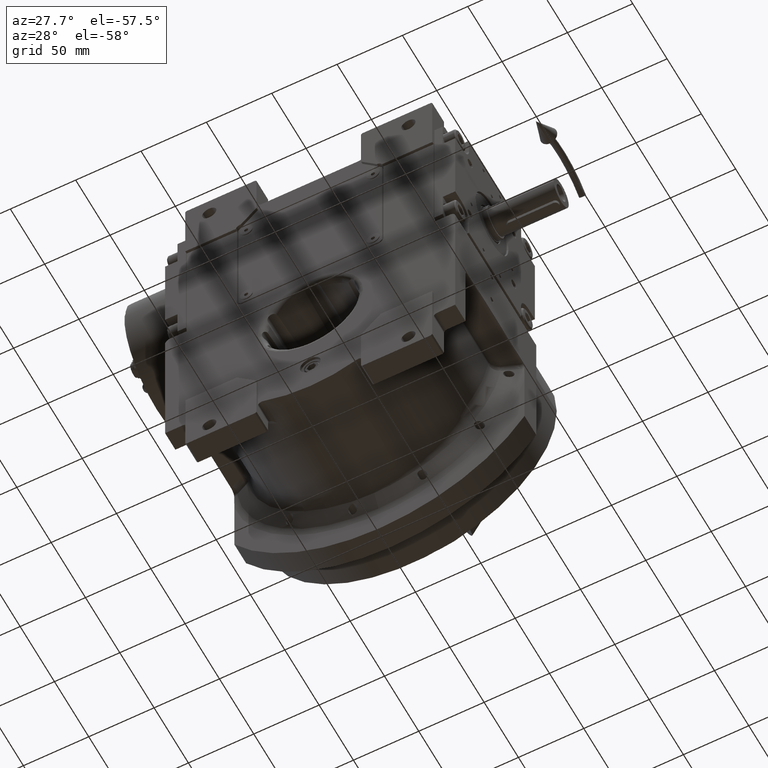
[diagram: clean part render]
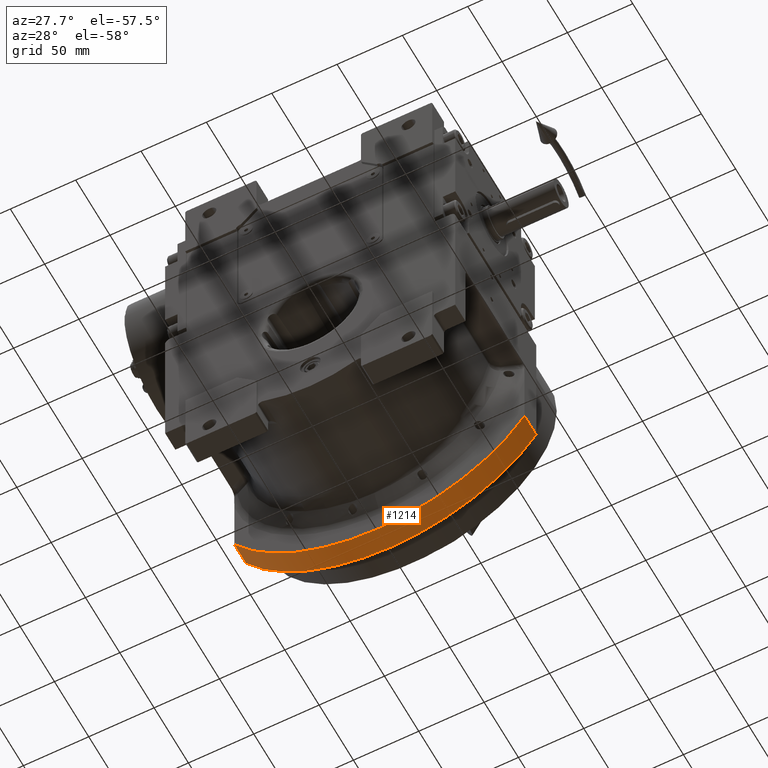
[diagram: same view with one face highlighted and labeled with its STEP entity id]
A machine part, auxiliary view. The second image highlights one B-rep face of the part: STEP entity #1214.
In plain terms, the highlighted cylindrical surface (partial cylindrical patch) has radius 132 mm, axis along (0, -1, 0).
Its self-contained STEP definition (entity closure, byte-faithful):
#837 = DIRECTION ( 'NONE',  ( 0.000000000000000000, 1.000000000000000000, 0.000000000000000000 ) ) ;
#1214 = ADVANCED_FACE ( 'NONE', ( #65085 ), #35081, .T. ) ;
#1331 = DIRECTION ( 'NONE',  ( 0.8409090909090902732, 0.000000000000000000, -0.5411764045359401809 ) ) ;
#1780 = CARTESIAN_POINT ( 'NONE',  ( 111.0000000000000000, 47.50000000000000000, -71.43528539874399996 ) ) ;
#7125 = ORIENTED_EDGE ( 'NONE', *, *, #95903, .F. ) ;
#8837 = CARTESIAN_POINT ( 'NONE',  ( 111.0000000000000000, 47.50000000000000000, -71.43528539874399996 ) ) ;
#9663 = AXIS2_PLACEMENT_3D ( 'NONE', #20281, #43636, #75616 ) ;
#10833 = EDGE_LOOP ( 'NONE', ( #84066, #7125, #56743, #16736 ) ) ;
#11527 = VECTOR ( 'NONE', #78411, 1000.000000000000000 ) ;
#12985 = CIRCLE ( 'NONE', #61670, 131.9999999999999716 ) ;
#16736 = ORIENTED_EDGE ( 'NONE', *, *, #61716, .T. ) ;
#18443 = LINE ( 'NONE', #8837, #11527 ) ;
#19872 = CARTESIAN_POINT ( 'NONE',  ( -111.0000000000000000, 47.50000000000000000, -71.43528539874399996 ) ) ;
#20281 = CARTESIAN_POINT ( 'NONE',  ( 7.105427357600998703E-15, 64.50000000000000000, 0.000000000000000000 ) ) ;
#20352 = DIRECTION ( 'NONE',  ( 1.000000000000000000, 0.000000000000000000, 0.000000000000000000 ) ) ;
#23178 = AXIS2_PLACEMENT_3D ( 'NONE', #42221, #89878, #20352 ) ;
#29611 = VERTEX_POINT ( 'NONE', #1780 ) ;
#29852 = CARTESIAN_POINT ( 'NONE',  ( 111.0000000000000000, 64.50000000000000000, -71.43528539874399996 ) ) ;
#35081 = CYLINDRICAL_SURFACE ( 'NONE', #23178, 132.0000000000000000 ) ;
#39183 = VECTOR ( 'NONE', #89406, 1000.000000000000000 ) ;
#39927 = CARTESIAN_POINT ( 'NONE',  ( 0.000000000000000000, 47.50000000000000000, 4.263256414560599853E-14 ) ) ;
#42221 = CARTESIAN_POINT ( 'NONE',  ( -4.517455316885850268E-28, -53.50000000000000000, 0.000000000000000000 ) ) ;
#43636 = DIRECTION ( 'NONE',  ( 0.000000000000000000, 1.000000000000000000, 0.000000000000000000 ) ) ;
#49654 = VERTEX_POINT ( 'NONE', #62186 ) ;
#50530 = EDGE_CURVE ( 'NONE', #99794, #49654, #99019, .T. ) ;
#56743 = ORIENTED_EDGE ( 'NONE', *, *, #64420, .F. ) ;
#59941 = CARTESIAN_POINT ( 'NONE',  ( -111.0000000000000000, 47.50000000000000000, -71.43528539874399996 ) ) ;
#61670 = AXIS2_PLACEMENT_3D ( 'NONE', #39927, #837, #1331 ) ;
#61716 = EDGE_CURVE ( 'NONE', #29611, #99794, #12985, .T. ) ;
#62186 = CARTESIAN_POINT ( 'NONE',  ( -111.0000000000000000, 64.50000000000000000, -71.43528539874399996 ) ) ;
#64420 = EDGE_CURVE ( 'NONE', #29611, #70584, #18443, .T. ) ;
#65085 = FACE_OUTER_BOUND ( 'NONE', #10833, .T. ) ;
#68042 = CIRCLE ( 'NONE', #9663, 132.0000000000000853 ) ;
#70584 = VERTEX_POINT ( 'NONE', #29852 ) ;
#75616 = DIRECTION ( 'NONE',  ( 0.8409090909090906063, 0.000000000000000000, -0.5411764045359397368 ) ) ;
#78411 = DIRECTION ( 'NONE',  ( 0.000000000000000000, 1.000000000000000000, 8.359326303060000099E-16 ) ) ;
#84066 = ORIENTED_EDGE ( 'NONE', *, *, #50530, .T. ) ;
#89406 = DIRECTION ( 'NONE',  ( 0.000000000000000000, 1.000000000000000000, 0.000000000000000000 ) ) ;
#89878 = DIRECTION ( 'NONE',  ( 0.000000000000000000, -1.000000000000000000, 0.000000000000000000 ) ) ;
#95903 = EDGE_CURVE ( 'NONE', #70584, #49654, #68042, .T. ) ;
#99019 = LINE ( 'NONE', #19872, #39183 ) ;
#99794 = VERTEX_POINT ( 'NONE', #59941 ) ;